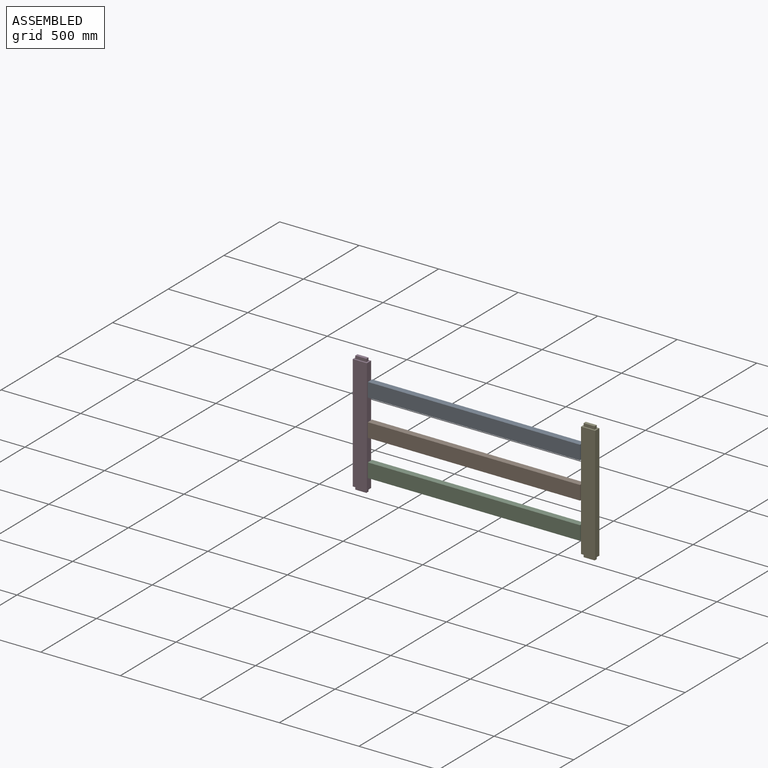
[diagram: assembled view]
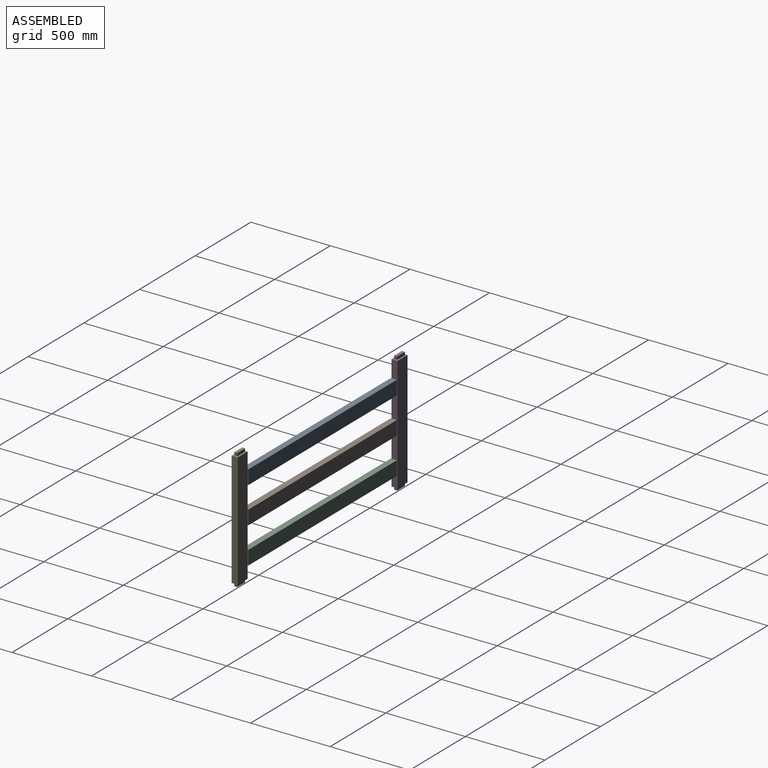
[diagram: assembled view, second angle]
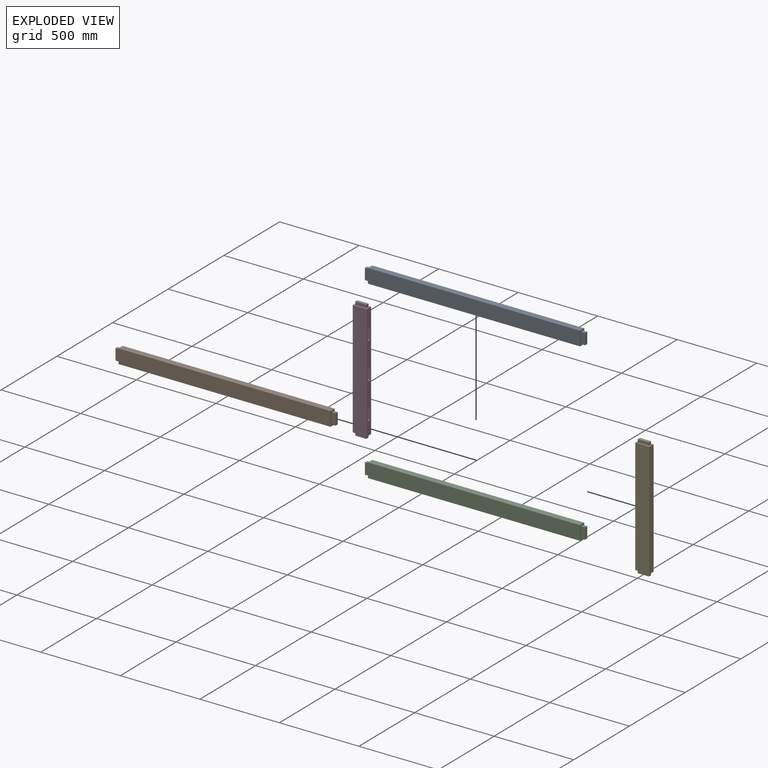
[diagram: exploded view]
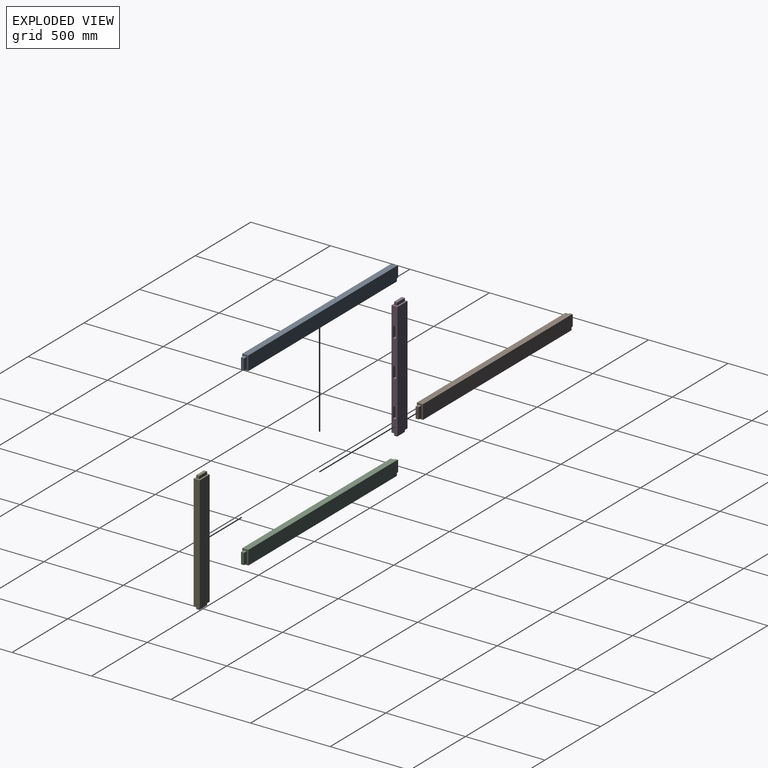
[diagram: exploded view, second angle]
ASSEMBLY  parts=5 mates=4
PART A: 16 faces, bbox 1384.3x38.1x88.9 mm
  f0: plane 1333.5x88.9mm, normal (0,1,0), area 118548.2mm2, adj f2,f3,f8,f14
  f1: plane 1333.5x88.9mm, normal (0,-1,0), area 118548.2mm2, adj f2,f3,f8,f14
  f2: plane 1333.5x38.1mm, normal (0,0,-1), area 50806.3mm2, adj f0,f1,f8,f14
  f3: plane 1333.5x38.1mm, normal (0,0,1), area 50806.3mm2, adj f0,f1,f8,f14
  f4: plane 69.85x25.4mm, normal (0,1,0), area 1774.2mm2, adj f5,f7,f8,f9
  f5: plane 25.4x19.05mm, normal (0,0,1), area 483.9mm2, adj f4,f6,f8,f9
  f6: plane 69.85x25.4mm, normal (0,-1,0), area 1774.2mm2, adj f5,f7,f8,f9
  f7: plane 25.4x19.05mm, normal (0,0,-1), area 483.9mm2, adj f4,f6,f8,f9
  f8: plane 88.9x38.1mm, normal (-1,0,0), area 2056.4mm2, adj f0,f1,f2,f3,f4,f5,f6,f7
  f9: plane 69.85x19.05mm, normal (-1,0,0), area 1330.6mm2, adj f4,f5,f6,f7
  f10: plane 69.85x25.4mm, normal (0,1,0), area 1774.2mm2, adj f11,f13,f14,f15
  f11: plane 25.4x19.05mm, normal (0,0,-1), area 483.9mm2, adj f10,f12,f14,f15
  f12: plane 69.85x25.4mm, normal (0,-1,0), area 1774.2mm2, adj f11,f13,f14,f15
  f13: plane 25.4x19.05mm, normal (0,0,1), area 483.9mm2, adj f10,f12,f14,f15
  f14: plane 88.9x38.1mm, normal (1,0,0), area 2056.4mm2, adj f0,f1,f2,f3,f10,f11,f12,f13
  f15: plane 69.85x19.05mm, normal (1,0,0), area 1330.6mm2, adj f10,f11,f12,f13
PART B: same geometry as A
PART C: same geometry as A
PART D: 31 faces, bbox 88.9x38.1x762 mm
  f0: plane 723.9x38.1mm, normal (1,0,0), area 23588.7mm2, adj f1,f2,f4,f5,f6,f7,f8,f9
  f1: plane 88.9x38.1mm, normal (0,0,-1), area 2056.4mm2, adj f0,f3,f4,f5,f26,f27,f28,f29
  f2: plane 88.9x38.1mm, normal (0,0,1), area 2056.4mm2, adj f0,f3,f4,f5,f21,f22,f23,f24
  f3: plane 723.9x38.1mm, normal (-1,0,0), area 27580.6mm2, adj f1,f2,f4,f5
  f4: plane 723.9x88.9mm, normal (0,-1,0), area 64354.7mm2, adj f0,f1,f2,f3
  f5: plane 723.9x88.9mm, normal (0,1,0), area 64354.7mm2, adj f0,f1,f2,f3
  f6: plane 69.85x19.05mm, normal (0,1,0), area 1330.6mm2, adj f0,f7,f9,f10
  f7: plane 19.05x19.05mm, normal (0,0,1), area 362.9mm2, adj f0,f6,f8,f10
  f8: plane 69.85x19.05mm, normal (0,-1,0), area 1330.6mm2, adj f0,f7,f9,f10
  f9: plane 19.05x19.05mm, normal (0,0,-1), area 362.9mm2, adj f0,f6,f8,f10
  f10: plane 69.85x19.05mm, normal (1,0,0), area 1330.6mm2, adj f6,f7,f8,f9
  f11: plane 69.85x19.05mm, normal (0,1,0), area 1330.6mm2, adj f0,f12,f14,f15
  f12: plane 19.05x19.05mm, normal (0,0,1), area 362.9mm2, adj f0,f11,f13,f15
  f13: plane 69.85x19.05mm, normal (0,-1,0), area 1330.6mm2, adj f0,f12,f14,f15
  f14: plane 19.05x19.05mm, normal (0,0,-1), area 362.9mm2, adj f0,f11,f13,f15
  f15: plane 69.85x19.05mm, normal (1,0,0), area 1330.6mm2, adj f11,f12,f13,f14
  f16: plane 19.05x19.05mm, normal (0,0,1), area 362.9mm2, adj f0,f17,f19,f20
  f17: plane 69.85x19.05mm, normal (0,-1,0), area 1330.6mm2, adj f0,f16,f18,f20
  f18: plane 19.05x19.05mm, normal (0,0,-1), area 362.9mm2, adj f0,f17,f19,f20
  f19: plane 69.85x19.05mm, normal (0,1,0), area 1330.6mm2, adj f0,f16,f18,f20
  f20: plane 69.85x19.05mm, normal (1,0,0), area 1330.6mm2, adj f16,f17,f18,f19
  f21: plane 69.85x19.05mm, normal (0,-1,0), area 1330.6mm2, adj f2,f22,f24,f25
  f22: plane 19.05x19.05mm, normal (1,0,0), area 362.9mm2, adj f2,f21,f23,f25
  f23: plane 69.85x19.05mm, normal (0,1,0), area 1330.6mm2, adj f2,f22,f24,f25
  f24: plane 19.05x19.05mm, normal (-1,0,0), area 362.9mm2, adj f2,f21,f23,f25
  f25: plane 69.85x19.05mm, normal (0,0,1), area 1330.6mm2, adj f21,f22,f23,f24
  f26: plane 69.85x19.05mm, normal (0,-1,0), area 1330.6mm2, adj f1,f27,f29,f30
  f27: plane 19.05x19.05mm, normal (-1,0,0), area 362.9mm2, adj f1,f26,f28,f30
  f28: plane 69.85x19.05mm, normal (0,1,0), area 1330.6mm2, adj f1,f27,f29,f30
  f29: plane 19.05x19.05mm, normal (1,0,0), area 362.9mm2, adj f1,f26,f28,f30
  f30: plane 69.85x19.05mm, normal (0,0,-1), area 1330.6mm2, adj f26,f27,f28,f29
PART E: same geometry as D
PLACE A t=(-25.05,15.49,273.53)mm
PLACE B t=(-25.05,15.49,44.93)mm
PLACE C t=(-25.05,15.49,-183.67)mm
PLACE D t=(-742.6,15.49,60.8)mm
PLACE E rot(axis=(0,0,1),180deg) t=(692.5,15.49,60.8)mm
MATE fastened E.f20 <-> A.f15  axis (-1,0,0) through (667.1,15.49,273.53)mm
MATE fastened C.f9 <-> D.f10  axis (-1,0,0) through (-717.2,15.49,-183.67)mm
MATE fastened D.f20 <-> A.f9  axis (1,0,0) through (-717.2,15.49,273.53)mm
MATE fastened D.f15 <-> B.f9  axis (1,0,0) through (-717.2,15.49,44.93)mm
